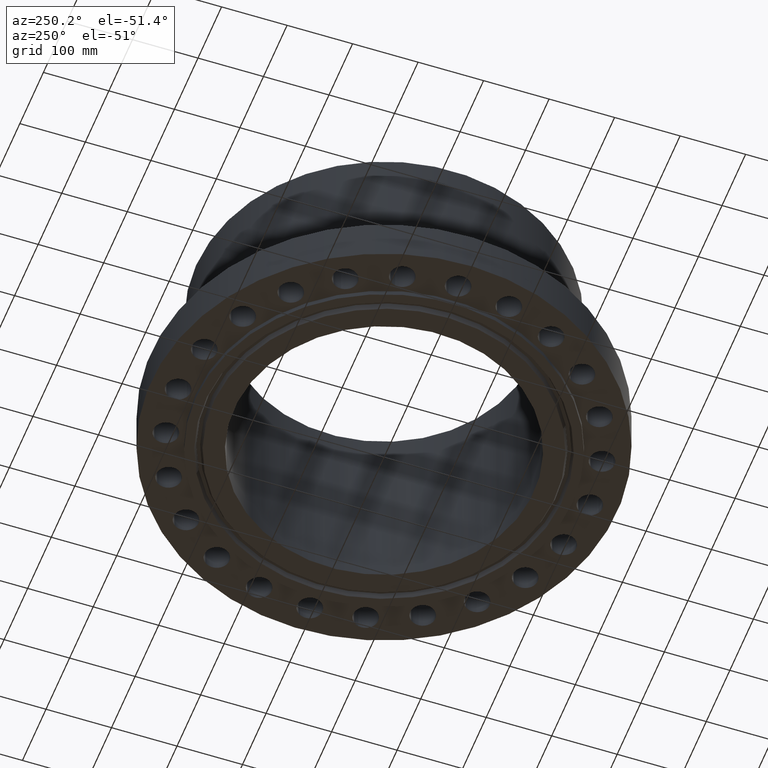
[diagram: clean part render]
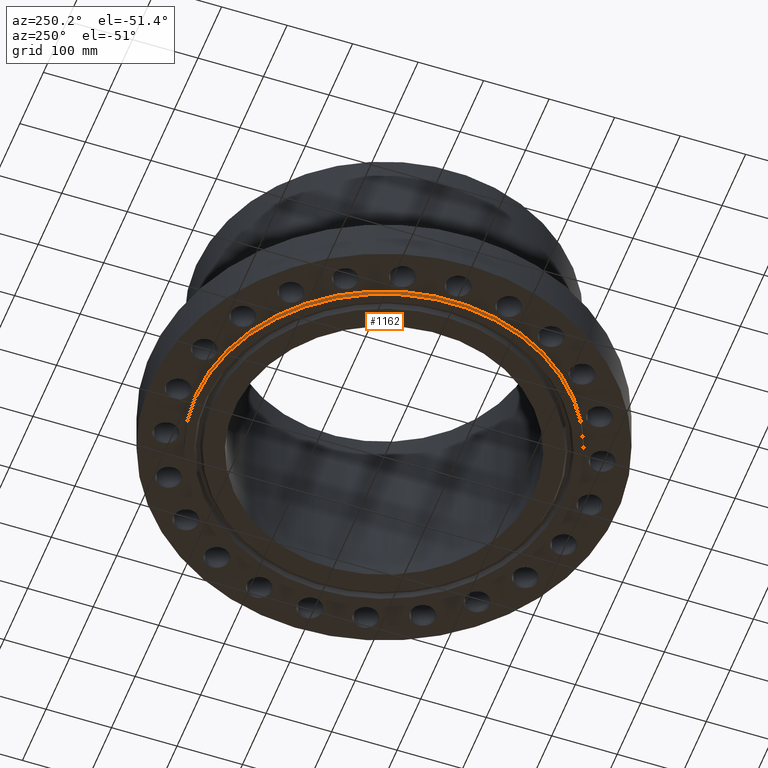
[diagram: same view with one face highlighted and labeled with its STEP entity id]
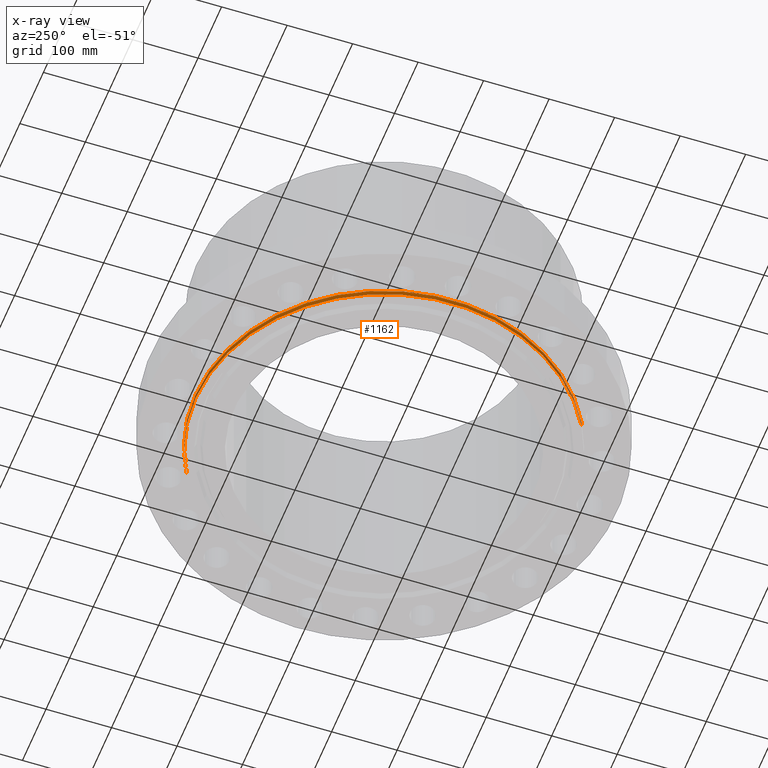
[diagram: x-ray of the same camera — body ghosted, the highlighted face saturated]
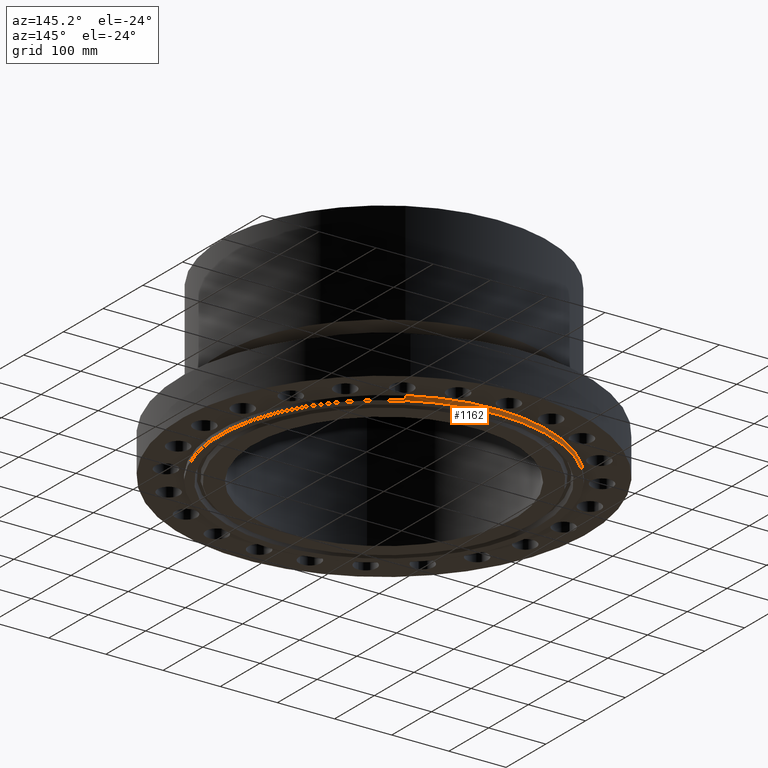
[diagram: same view with one face highlighted and labeled with its STEP entity id]
A machine part, auxiliary view. The second image highlights one B-rep face of the part: STEP entity #1162.
The next image is the same camera in x-ray: the body ghosted, the highlighted face saturated — about 0% of this face is hidden behind the body in this view.
A second angle (auxiliary view) of the same face is appended — the face is thin or edge-on in the first view.
In plain terms, the highlighted cylindrical surface (partial cylindrical patch) has radius 287.337 mm, axis along (0, 0, -1).
Its self-contained STEP definition (entity closure, byte-faithful):
#118=AXIS2_PLACEMENT_3D('Circle Axis2P3D',#116,#117,$) ;
#1120=AXIS2_PLACEMENT_3D('Circle Axis2P3D',#1118,#1119,$) ;
#1144=AXIS2_PLACEMENT_3D('Cylinder Axis2P3D',#1141,#1142,#1143) ;
#111=CARTESIAN_POINT('Vertex',(5.42350140548,9.92765273142,2.23792987641E-015)) ;
#113=CARTESIAN_POINT('Vertex',(-5.42350140548,-9.92765273142,2.23792987641E-015)) ;
#116=CARTESIAN_POINT('Axis2P3D Location',(0.,0.,0.)) ;
#1118=CARTESIAN_POINT('Axis2P3D Location',(0.,0.,-0.313000000001)) ;
#1122=CARTESIAN_POINT('Vertex',(-5.42350140548,-9.92765273142,-0.313000000001)) ;
#1124=CARTESIAN_POINT('Vertex',(5.42350140548,9.92765273142,-0.313000000001)) ;
#1141=CARTESIAN_POINT('Axis2P3D Location',(0.,0.,5.71850000002)) ;
#1146=CARTESIAN_POINT('Line Origine',(-5.42350140548,-9.92765273142,-0.156500000001)) ;
#1151=CARTESIAN_POINT('Line Origine',(5.42350140548,9.92765273142,-0.156500000001)) ;
#117=DIRECTION('Axis2P3D Direction',(0.,0.,-0.0393700787402)) ;
#1119=DIRECTION('Axis2P3D Direction',(0.,0.,-0.0393700787402)) ;
#1142=DIRECTION('Axis2P3D Direction',(0.,0.,-0.0393700787402)) ;
#1143=DIRECTION('Axis2P3D XDirection',(0.0188750212049,0.0345504945626,0.)) ;
#1147=DIRECTION('Vector Direction',(0.,0.,-0.0393700787402)) ;
#1152=DIRECTION('Vector Direction',(0.,0.,-0.0393700787402)) ;
#1148=VECTOR('Line Direction',#1147,0.0393700787402) ;
#1153=VECTOR('Line Direction',#1152,0.0393700787402) ;
#1157=ORIENTED_EDGE('',*,*,#1126,.F.) ;
#1158=ORIENTED_EDGE('',*,*,#1150,.T.) ;
#1159=ORIENTED_EDGE('',*,*,#120,.T.) ;
#1160=ORIENTED_EDGE('',*,*,#1155,.F.) ;
#1162=ADVANCED_FACE('PartBody',(#1161),#1145,.T.) ;
#119=CIRCLE('generated circle',#118,11.3125) ;
#1121=CIRCLE('generated circle',#1120,11.3125) ;
#1145=CYLINDRICAL_SURFACE('generated cylinder',#1144,11.3125) ;
#120=EDGE_CURVE('',#114,#112,#119,.T.) ;
#1126=EDGE_CURVE('',#1123,#1125,#1121,.T.) ;
#1150=EDGE_CURVE('',#1123,#114,#1149,.F.) ;
#1155=EDGE_CURVE('',#1125,#112,#1154,.F.) ;
#1156=EDGE_LOOP('',(#1157,#1158,#1159,#1160)) ;
#1161=FACE_OUTER_BOUND('',#1156,.T.) ;
#1149=LINE('Line',#1146,#1148) ;
#1154=LINE('Line',#1151,#1153) ;
#112=VERTEX_POINT('',#111) ;
#114=VERTEX_POINT('',#113) ;
#1123=VERTEX_POINT('',#1122) ;
#1125=VERTEX_POINT('',#1124) ;